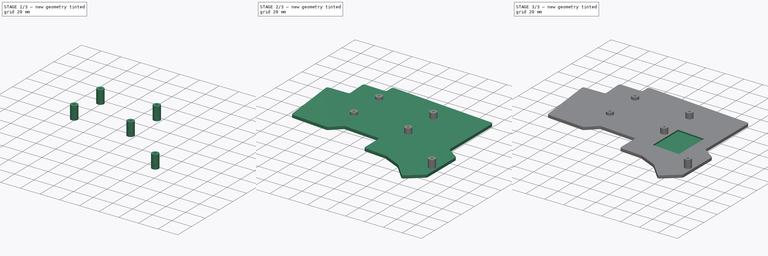
[diagram: build sequence overview — one tinted view per stage of 3, left to right]
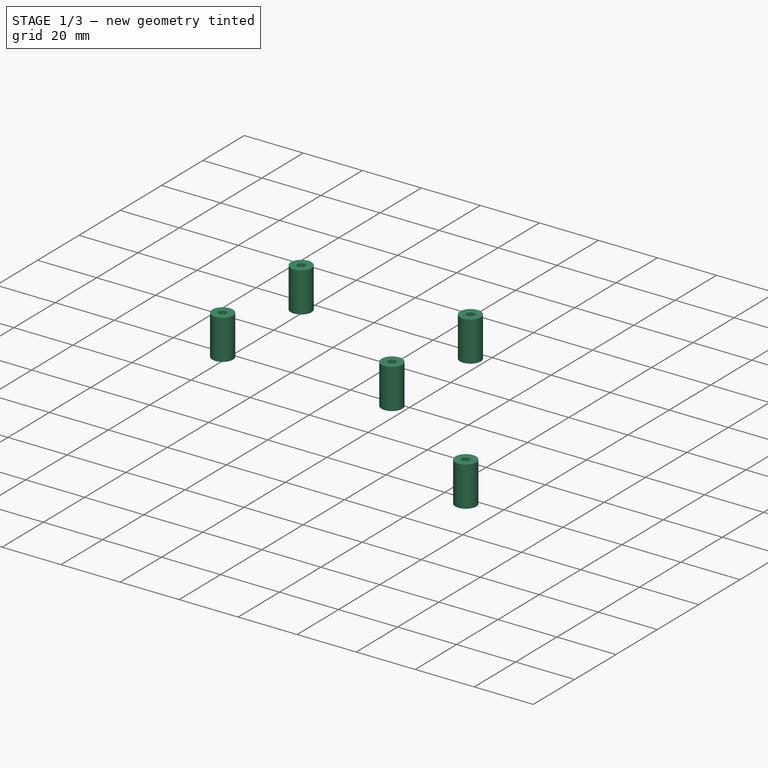
[diagram: stage 1 of 3 — iso view after this stage's code; geometry added in this stage tinted green]
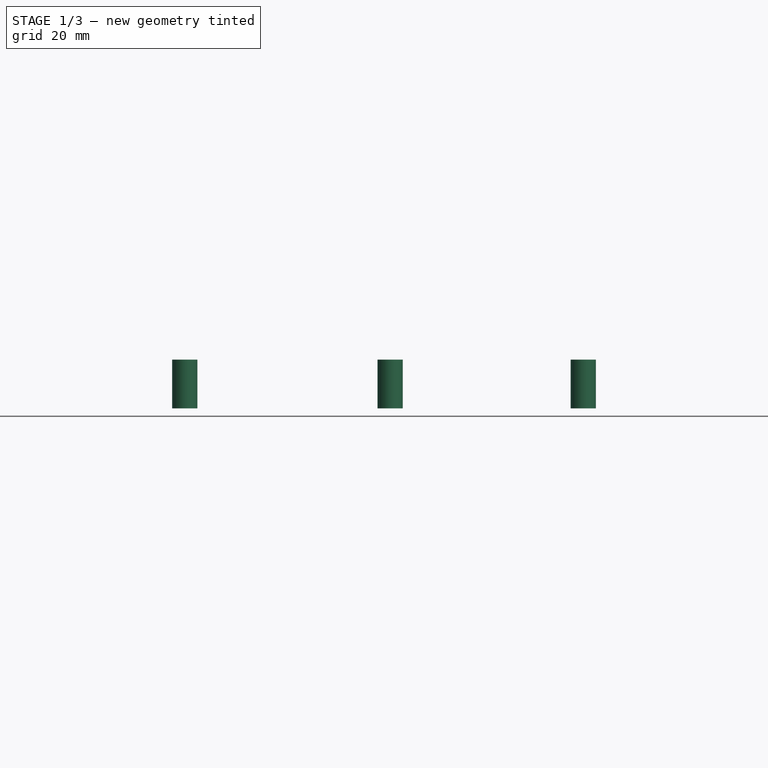
[diagram: stage 1 of 3 — front view after this stage's code; geometry added in this stage tinted green]
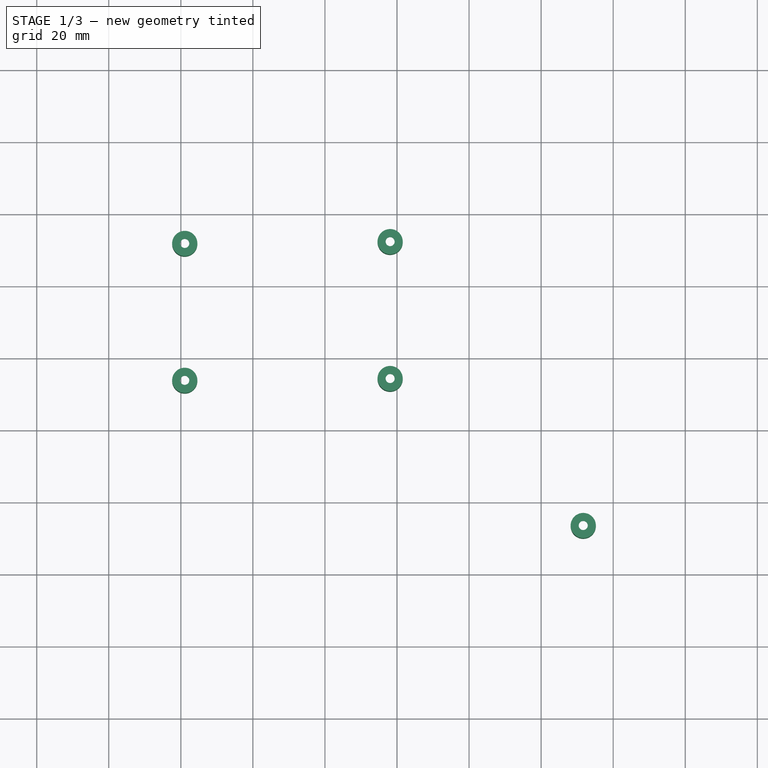
[diagram: stage 1 of 3 — top view after this stage's code; geometry added in this stage tinted green]
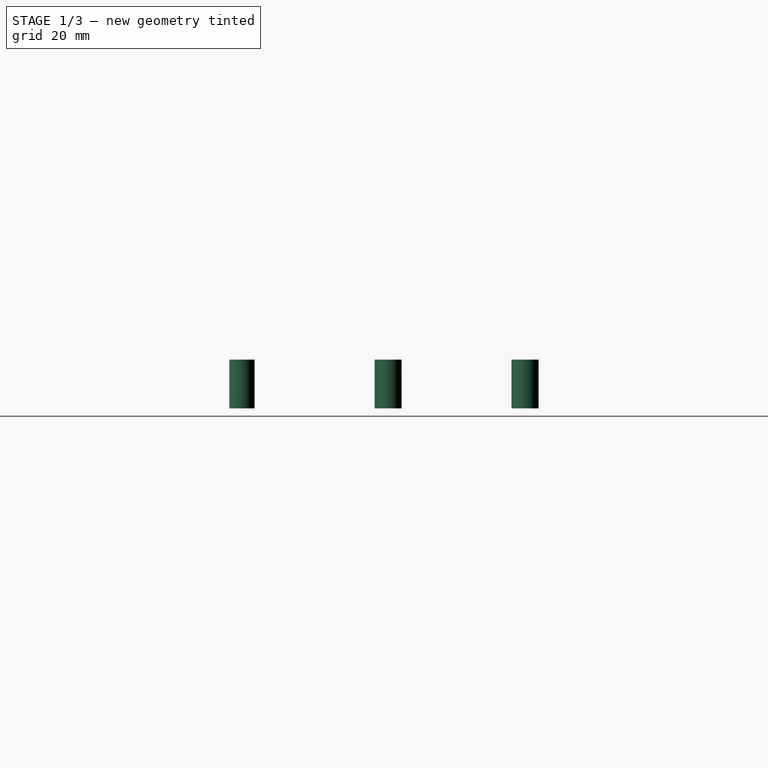
[diagram: stage 1 of 3 — right view after this stage's code; geometry added in this stage tinted green]
FCSTD DOCUMENT  (FreeCAD 1.0R39109 (Git))
Label: open_case
License: All rights reserved
LicenseURL: http://en.wikipedia.org/wiki/All_rights_reserved
objects: Sketcher::SketchObject×7, Part::Feature×3, PartDesign::Pad×3, PartDesign::Pocket×3, PartDesign::Plane×2, PartDesign::SubShapeBinder×1, Measure::MeasureDistanceDetached×1, App::DocumentObjectGroup×1, PartDesign::Body×1, Part::Refine×1
note: 40 computed .brp shape members not serialized (recipe doc carries the construction recipe); baked Part::Feature solids carry a one-line shape summary decoded from their .brp

FEATURE [Part::Feature] Part__Feature  label="pcb_left"
  Placement = pos=(75.5822,30.5858,0) rot=(0,0,1;0rad)
  shape: bbox 163.5 x 132.8 x 1.51 mm, 41 faces (baked)
FEATURE [Part::Feature] Part__Feature001  label="bottom_left"
  Placement = pos=(-38.5496,187.157,-3) rot=(0,-1,0;-0.05236rad)
  shape: bbox 163.4 x 132.8 x 10.55 mm, 548 faces (baked)
FEATURE [Part::Feature] Part__Feature005  label="switchplate_left"
  Placement = pos=(-38.5496,187.157,3.51) rot=(0,0,1;0rad)
  shape: bbox 163.5 x 132.8 x 3 mm, 612 faces, 0 solids (baked)
FEATURE [PartDesign::SubShapeBinder] Binder
  BindCopyOnChange = 0
  BindMode = 0
  ClaimChildren = false
  Context = -> Body [Binder.]
  Fuse = false
  MakeFace = true
  OffsetFill = false
  OffsetIntersection = false
  OffsetJoinType = 0
  OffsetOpenResult = false
  PartialLoad = false
  Relative = true
  Support = -> [Part__Feature,Part__Feature001]
  _Version = 2
FEATURE [PartDesign::Plane] DatumPlane
  AttachmentOffset = pos=(0,0,2.4) rot=(0,0,1;0rad)
  AttachmentSupport = -> [Binder]
  Length = 212.817
  MapMode = 5
  Placement = pos=(0,0,-2.4) rot=(1,0,0;3.14159rad)
  ResizeMode = 0
  Width = 163.85
FEATURE [Sketcher::SketchObject] Sketch
  ArcFitTolerance = 1e-06
  AttachmentSupport = -> [DatumPlane]
  ExternalGeometry = -> [Binder]
  FullyConstrained = true
  MakeInternals = false
  MapMode = 5
  Placement = pos=(0,0,-2.4) rot=(1,0,0;3.14159rad)
  sketch-geometry (10):
    g0: Circle CenterX=41.0861 CenterY=-33.7618 CenterZ=0 NormalX=0 NormalY=0 NormalZ=1 AngleXU=0 Radius=1.25
    g1: Circle CenterX=98.0861 CenterY=-34.2619 CenterZ=0 NormalX=0 NormalY=0 NormalZ=1 AngleXU=0 Radius=1.25
    g2: Circle CenterX=151.686 CenterY=6.53815 CenterZ=0 NormalX=0 NormalY=0 NormalZ=1 AngleXU=0 Radius=1.25
    g3: Circle CenterX=98.0861 CenterY=-72.2618 CenterZ=0 NormalX=0 NormalY=0 NormalZ=1 AngleXU=0 Radius=1.25
    g4: Circle CenterX=41.0861 CenterY=-71.7618 CenterZ=0 NormalX=0 NormalY=0 NormalZ=1 AngleXU=0 Radius=1.25
    g5: Circle CenterX=41.0861 CenterY=-33.7618 CenterZ=0 NormalX=0 NormalY=0 NormalZ=1 AngleXU=0 Radius=3.5
    g6: Circle CenterX=98.0861 CenterY=-34.2619 CenterZ=0 NormalX=0 NormalY=0 NormalZ=1 AngleXU=0 Radius=3.5
    g7: Circle CenterX=151.686 CenterY=6.53815 CenterZ=0 NormalX=0 NormalY=0 NormalZ=1 AngleXU=0 Radius=3.5
    g8: Circle CenterX=98.0861 CenterY=-72.2618 CenterZ=0 NormalX=0 NormalY=0 NormalZ=1 AngleXU=0 Radius=3.5
    g9: Circle CenterX=41.0861 CenterY=-71.7618 CenterZ=0 NormalX=0 NormalY=0 NormalZ=1 AngleXU=0 Radius=3.5
  constraints (20):
    c: Diameter(g0) = 2.5
    c: Coincident(g0,g-3)
    c: Diameter(g1) = 2.5
    c: Coincident(g1,g-4)
    c: Diameter(g2) = 2.5
    c: Coincident(g2,g-5)
    c: Diameter(g3) = 2.5
    c: Coincident(g3,g-6)
    c: Diameter(g4) = 2.5
    c: Coincident(g4,g-7)
    c: Coincident(g5,g0)
    c: Diameter(g5) = 7
    c: Coincident(g6,g1)
    c: Coincident(g7,g2)
    c: Coincident(g8,g3)
    c: Coincident(g9,g4)
    c: Diameter(g9) = 7
    c: Diameter(g6) = 7
    c: Diameter(g7) = 7
    c: Diameter(g8) = 7
FEATURE [PartDesign::Pad] Pad
  Direction = (0,0,-1)
  Length = 1.5
  Length2 = 10
  Placement = pos=(0,0,-2.4) rot=(1,0,0;3.14159rad)
  Profile = -> Sketch
  ReferenceAxis = -> Sketch [N_Axis]
  Suppressed = false
  Type = 0
FEATURE [Sketcher::SketchObject] Sketch001
  ArcFitTolerance = 1e-06
  AttachmentSupport = -> [Pad]
  ExternalGeometry = -> [Pad]
  FullyConstrained = true
  MakeInternals = false
  MapMode = 5
  Placement = pos=(0,0,-3.9) rot=(1,0,0;3.14159rad)
  sketch-geometry (10):
    g0: Circle CenterX=41.0861 CenterY=-33.7618 CenterZ=0 NormalX=0 NormalY=0 NormalZ=1 AngleXU=0 Radius=3.5
    g1: Circle CenterX=41.0861 CenterY=-33.7618 CenterZ=0 NormalX=0 NormalY=0 NormalZ=1 AngleXU=0 Radius=2.5
    g2: Circle CenterX=41.0861 CenterY=-71.7618 CenterZ=0 NormalX=0 NormalY=0 NormalZ=1 AngleXU=0 Radius=2.5
    g3: Circle CenterX=98.0861 CenterY=-72.2618 CenterZ=0 NormalX=0 NormalY=0 NormalZ=1 AngleXU=0 Radius=2.5
    g4: Circle CenterX=98.0861 CenterY=-34.2619 CenterZ=0 NormalX=0 NormalY=0 NormalZ=1 AngleXU=0 Radius=2.5
    g5: Circle CenterX=151.686 CenterY=6.53815 CenterZ=0 NormalX=0 NormalY=0 NormalZ=1 AngleXU=0 Radius=2.5
    g6: Circle CenterX=151.686 CenterY=6.53815 CenterZ=0 NormalX=0 NormalY=0 NormalZ=1 AngleXU=0 Radius=3.5
    g7: Circle CenterX=98.0861 CenterY=-34.2619 CenterZ=0 NormalX=0 NormalY=0 NormalZ=1 AngleXU=0 Radius=3.5
    g8: Circle CenterX=98.0861 CenterY=-72.2618 CenterZ=0 NormalX=0 NormalY=0 NormalZ=1 AngleXU=0 Radius=3.5
    g9: Circle CenterX=41.0861 CenterY=-71.7618 CenterZ=0 NormalX=0 NormalY=0 NormalZ=1 AngleXU=0 Radius=3.5
  constraints (20):
    c: Coincident(g0,g-3)
    c: Equal(g0,g-3)
    c: Diameter(g1) = 5
    c: Coincident(g1,g0)
    c: Diameter(g2) = 5
    c: Coincident(g2,g-4)
    c: Diameter(g3) = 5
    c: Coincident(g3,g-6)
    c: Diameter(g4) = 5
    c: Coincident(g4,g-5)
    c: Diameter(g5) = 5
    c: Coincident(g5,g-7)
    c: Coincident(g6,g5)
    c: Tangent(g6,g-7)
    c: Coincident(g7,g4)
    c: Tangent(g7,g-5)
    c: Coincident(g8,g3)
    c: Tangent(g8,g-6)
    c: Coincident(g9,g2)
    c: Tangent(g9,g-4)
FEATURE [PartDesign::Pad] Pad001
  BaseFeature = -> Pad
  Direction = (0,0,-1)
  Length = 12
  Length2 = 10
  Placement = pos=(0,0,-2.4) rot=(1,0,0;3.14159rad)
  Profile = -> Sketch001
  ReferenceAxis = -> Sketch001 [N_Axis]
  Suppressed = false
  Type = 0
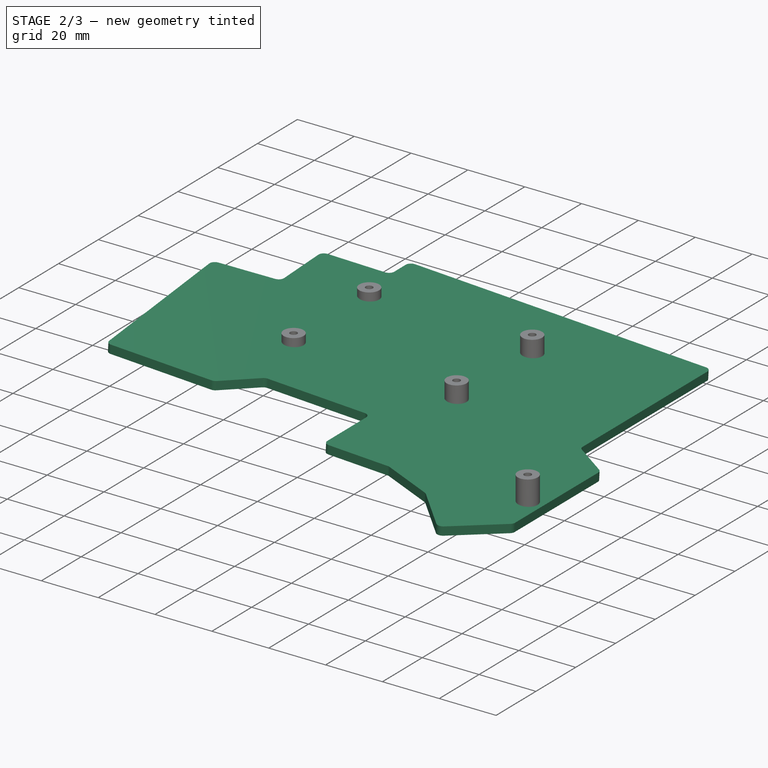
[diagram: stage 2 of 3 — iso view after this stage's code; geometry added in this stage tinted green]
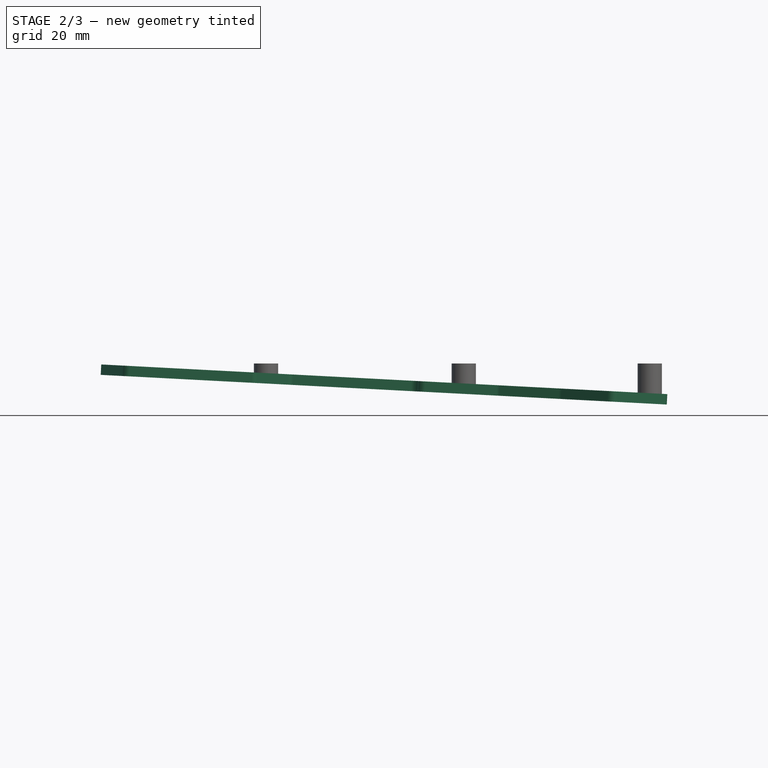
[diagram: stage 2 of 3 — front view after this stage's code; geometry added in this stage tinted green]
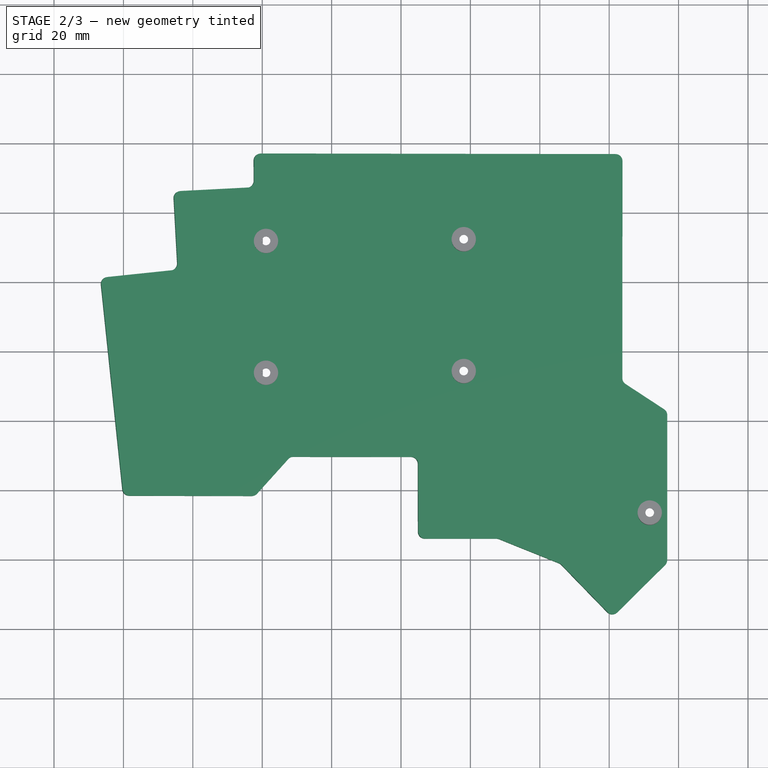
[diagram: stage 2 of 3 — top view after this stage's code; geometry added in this stage tinted green]
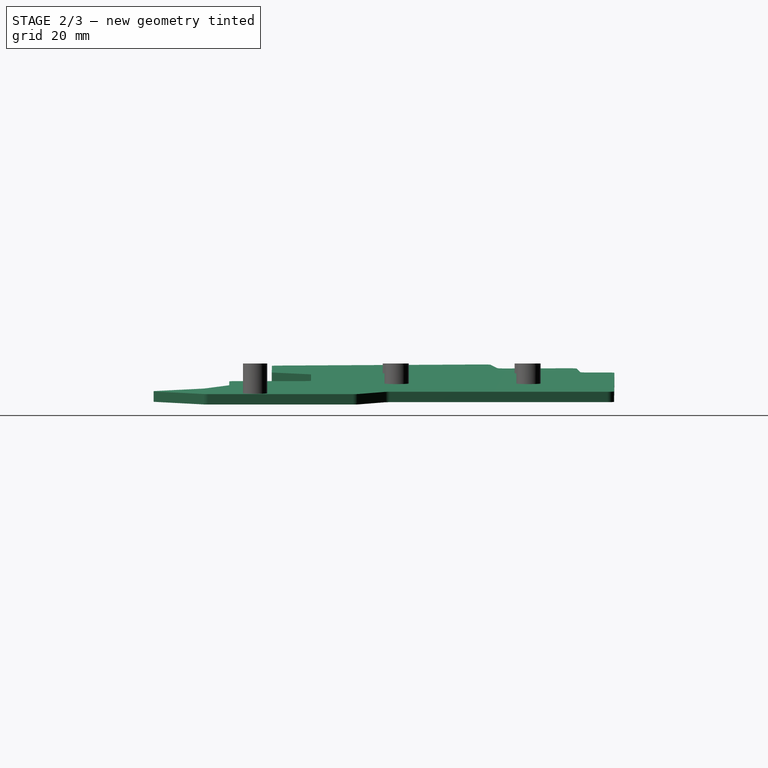
[diagram: stage 2 of 3 — right view after this stage's code; geometry added in this stage tinted green]
FEATURE [Sketcher::SketchObject] Sketch002
  ArcFitTolerance = 1e-06
  AttachmentSupport = -> [Binder]
  FullyConstrained = false
  MakeInternals = false
  MapMode = 5
  Placement = pos=(0,0,1.51) rot=(0,0,1;0rad)
  sketch-geometry (112):
    g0: ArcOfCircle [constr] CenterX=39.9952 CenterY=95.0104 CenterZ=0 NormalX=0 NormalY=0 NormalZ=1 AngleXU=0 Radius=1.99994 StartAngle=1.57002 EndAngle=3.14616
    g1: ArcOfCircle [constr] CenterX=36.0217 CenterY=89.1624 CenterZ=0 NormalX=0 NormalY=0 NormalZ=1 AngleXU=0 Radius=1.97389 StartAngle=4.7654 EndAngle=6.30103
    g2: ArcOfCircle [constr] CenterX=142.46 CenterY=95.0317 CenterZ=0 NormalX=0 NormalY=0 NormalZ=1 AngleXU=0 Radius=1.97867 StartAngle=6.23309 EndAngle=7.85321
    g3: ArcOfCircle [constr] CenterX=146.437 CenterY=32.3376 CenterZ=0 NormalX=0 NormalY=0 NormalZ=1 AngleXU=0 Radius=2.00014 StartAngle=3.14125 EndAngle=4.12866
    g4: ArcOfCircle [constr] CenterX=155.336 CenterY=21.6659 CenterZ=0 NormalX=0 NormalY=0 NormalZ=1 AngleXU=0 Radius=1.99998 StartAngle=6.28318 EndAngle=7.27029
    g5: ArcOfCircle [constr] CenterX=155.336 CenterY=-20.1097 CenterZ=0 NormalX=0 NormalY=0 NormalZ=1 AngleXU=0 Radius=1.99993 StartAngle=5.49777 EndAngle=6.2832
    g6: ArcOfCircle [constr] CenterX=141.607 CenterY=-33.8387 CenterZ=0 NormalX=0 NormalY=0 NormalZ=1 AngleXU=0 Radius=1.99998 StartAngle=3.9122 EndAngle=5.4978
    g7: ArcOfCircle [constr] CenterX=125.446 CenterY=-22.9349 CenterZ=0 NormalX=0 NormalY=0 NormalZ=1 AngleXU=0 Radius=1.99976 StartAngle=0.7706 EndAngle=1.18793
    g8: ArcOfCircle [constr] CenterX=108.198 CenterY=-15.9884 CenterZ=0 NormalX=0 NormalY=0 NormalZ=1 AngleXU=0 Radius=2.00022 StartAngle=1.18792 EndAngle=1.57077
    g9: ArcOfCircle [constr] CenterX=87.4407 CenterY=-11.9882 CenterZ=0 NormalX=0 NormalY=0 NormalZ=1 AngleXU=0 Radius=2.00036 StartAngle=3.14369 EndAngle=4.73297
    g10: ArcOfCircle [constr] CenterX=83.4404 CenterY=7.56182 CenterZ=0 NormalX=0 NormalY=0 NormalZ=1 AngleXU=0 Radius=2.00003 StartAngle=0.00214054 EndAngle=1.57078
    g11: ArcOfCircle [constr] CenterX=49.3747 CenterY=7.56196 CenterZ=0 NormalX=0 NormalY=0 NormalZ=1 AngleXU=0 Radius=1.99989 StartAngle=1.57077 EndAngle=2.40702
    g12: ArcOfCircle [constr] CenterX=37.3924 CenterY=0.263209 CenterZ=0 NormalX=0 NormalY=0 NormalZ=1 AngleXU=0 Radius=1.99995 StartAngle=4.71115 EndAngle=5.5486
    g13: ArcOfCircle [constr] CenterX=2.0375 CenterY=0.306806 CenterZ=0 NormalX=0 NormalY=0 NormalZ=1 AngleXU=0 Radius=2.04355 StartAngle=3.24407 EndAngle=4.71118
    g14: ArcOfCircle [constr] CenterX=-4.17172 CenterY=59.3829 CenterZ=0 NormalX=0 NormalY=0 NormalZ=1 AngleXU=0 Radius=1.99993 StartAngle=1.67548 EndAngle=3.24635
    g15: ArcOfCircle [constr] CenterX=13.877 CenterY=65.3018 CenterZ=0 NormalX=0 NormalY=0 NormalZ=1 AngleXU=0 Radius=2.00001 StartAngle=4.81711 EndAngle=6.33743
    g16: ArcOfCircle [constr] CenterX=16.8579 CenterY=84.1788 CenterZ=0 NormalX=0 NormalY=0 NormalZ=1 AngleXU=0 Radius=2.00001 StartAngle=1.62316 EndAngle=3.19584
    g17: LineSegment [constr] StartX=39.9967 StartY=97.0103 StartZ=0 EndX=142.462 EndY=97.0103 EndZ=0
    g18: LineSegment [constr] StartX=144.437 StartY=94.9326 StartZ=0 EndX=144.437 EndY=32.3383 EndZ=0
    g19: LineSegment [constr] StartX=145.334 StartY=30.6686 StartZ=0 EndX=156.438 EndY=23.3348 EndZ=0
    g20: LineSegment [constr] StartX=157.336 StartY=21.6659 StartZ=0 EndX=157.336 EndY=-20.1097 EndZ=0
    g21: LineSegment [constr] StartX=156.75 StartY=-21.5239 StartZ=0 EndX=143.021 EndY=-35.2529 EndZ=0
    g22: LineSegment [constr] StartX=140.172 StartY=-35.2318 StartZ=0 EndX=126.881 EndY=-21.542 EndZ=0
    g23: LineSegment [constr] StartX=108.946 StartY=-14.133 StartZ=0 EndX=126.193 EndY=-21.08 EndZ=0
    g24: LineSegment [constr] StartX=108.198 StartY=-13.9882 StartZ=0 EndX=87.4819 EndY=-13.9882 EndZ=0
    g25: LineSegment [constr] StartX=85.4404 StartY=-11.9924 StartZ=0 EndX=85.4404 EndY=7.5661 EndZ=0
    g26: LineSegment [constr] StartX=83.4404 StartY=9.56184 StartZ=0 EndX=49.3747 EndY=9.56184 EndZ=0
    g27: LineSegment [constr] StartX=47.8905 StartY=8.90242 StartZ=0 EndX=38.8766 EndY=-1.07731 EndZ=0
    g28: LineSegment [constr] StartX=37.3899 StartY=-1.73674 StartZ=0 EndX=2.03503 EndY=-1.73674 EndZ=0
    g29: LineSegment [constr] StartX=0.00466849 StartY=0.0977495 StartZ=0 EndX=-6.16069 EndY=59.1738 EndZ=0
    g30: LineSegment [constr] StartX=-4.3807 StartY=61.3719 StartZ=0 EndX=14.0861 EndY=63.3128 EndZ=0
    g31: LineSegment [constr] StartX=15.8741 StartY=65.4103 StartZ=0 EndX=14.8608 EndY=84.0703 EndZ=0
    g32: LineSegment [constr] StartX=16.7532 StartY=86.176 StartZ=0 EndX=36.1263 EndY=87.1913 EndZ=0
    g33: LineSegment [constr] StartX=37.9953 StartY=89.1977 StartZ=0 EndX=37.9953 EndY=95.0013 EndZ=0
    g34: LineSegment StartX=37.7953 StartY=89.1958 StartZ=0 EndX=37.7953 EndY=95.0008 EndZ=0
    g35: ArcOfCircle CenterX=39.9952 CenterY=95.0104 CenterZ=0 NormalX=0 NormalY=0 NormalZ=1 AngleXU=0 Radius=2.19994 StartAngle=1.57005 EndAngle=3.14595
    g36: LineSegment StartX=39.9968 StartY=97.2103 StartZ=0 EndX=142.462 EndY=97.2103 EndZ=0
    g37: ArcOfCircle CenterX=142.46 CenterY=95.0317 CenterZ=0 NormalX=0 NormalY=0 NormalZ=1 AngleXU=0 Radius=2.17867 StartAngle=6.23545 EndAngle=7.85325
    g38: LineSegment StartX=144.637 StartY=94.9277 StartZ=0 EndX=144.637 EndY=32.3376 EndZ=0
    g39: LineSegment StartX=145.445 StartY=30.8355 StartZ=0 EndX=156.549 EndY=23.5017 EndZ=0
    g40: ArcOfCircle CenterX=155.336 CenterY=21.6659 CenterZ=0 NormalX=0 NormalY=0 NormalZ=1 AngleXU=0 Radius=2.19998 StartAngle=4e-16 EndAngle=0.987099
    g41: LineSegment StartX=157.536 StartY=21.6659 StartZ=0 EndX=157.536 EndY=-20.1097 EndZ=0
    g42: ArcOfCircle CenterX=155.336 CenterY=-20.1097 CenterZ=0 NormalX=0 NormalY=0 NormalZ=1 AngleXU=0 Radius=2.19993 StartAngle=5.49779 EndAngle=6.28319
    g43: LineSegment StartX=156.892 StartY=-21.6653 StartZ=0 EndX=143.163 EndY=-35.3943 EndZ=0
    g44: ArcOfCircle CenterX=141.607 CenterY=-33.8387 CenterZ=0 NormalX=0 NormalY=0 NormalZ=1 AngleXU=0 Radius=2.19998 StartAngle=3.91221 EndAngle=5.49779
    g45: LineSegment StartX=140.029 StartY=-35.3712 StartZ=0 EndX=126.738 EndY=-21.6812 EndZ=0
    g46: ArcOfCircle CenterX=125.446 CenterY=-22.9349 CenterZ=0 NormalX=0 NormalY=0 NormalZ=1 AngleXU=0 Radius=1.79976 StartAngle=0.770621 EndAngle=1.1879
    g47: LineSegment StartX=108.871 StartY=-14.3185 StartZ=0 EndX=126.119 EndY=-21.2655 EndZ=0
    g48: ArcOfCircle CenterX=108.198 CenterY=-15.9884 CenterZ=0 NormalX=0 NormalY=0 NormalZ=1 AngleXU=0 Radius=1.80022 StartAngle=1.1879 EndAngle=1.5708
    g49: LineSegment StartX=108.198 StartY=-14.1882 StartZ=0 EndX=87.4839 EndY=-14.1882 EndZ=0
    g50: ArcOfCircle CenterX=87.4407 CenterY=-11.9882 CenterZ=0 NormalX=0 NormalY=0 NormalZ=1 AngleXU=0 Radius=2.20036 StartAngle=3.14359 EndAngle=4.73201
    g51: LineSegment StartX=85.2404 StartY=-11.9926 StartZ=0 EndX=85.2404 EndY=7.56588 EndZ=0
    g52: ArcOfCircle CenterX=83.4404 CenterY=7.56182 CenterZ=0 NormalX=0 NormalY=0 NormalZ=1 AngleXU=0 Radius=1.80003 StartAngle=0.00225633 EndAngle=1.5708
    g53: LineSegment StartX=83.4404 StartY=9.36184 StartZ=0 EndX=49.3747 EndY=9.36184 EndZ=0
    g54: ArcOfCircle CenterX=49.3747 CenterY=7.56196 CenterZ=0 NormalX=0 NormalY=0 NormalZ=1 AngleXU=0 Radius=1.79989 StartAngle=1.5708 EndAngle=2.407
    g55: LineSegment StartX=48.039 StartY=8.7684 StartZ=0 EndX=39.025 EndY=-1.21139 EndZ=0
    g56: ArcOfCircle CenterX=37.3924 CenterY=0.263209 CenterZ=0 NormalX=0 NormalY=0 NormalZ=1 AngleXU=0 Radius=2.19995 StartAngle=4.7112 EndAngle=5.54859
    g57: LineSegment StartX=37.3898 StartY=-1.93674 StartZ=0 EndX=2.03491 EndY=-1.93674 EndZ=0
    g58: ArcOfCircle CenterX=2.0375 CenterY=0.306806 CenterZ=0 NormalX=0 NormalY=0 NormalZ=1 AngleXU=0 Radius=2.24355 StartAngle=3.24414 EndAngle=4.71124
    g59: LineSegment StartX=-0.194266 StartY=0.0771359 StartZ=0 EndX=-6.3596 EndY=59.1529 EndZ=0
    g60: ArcOfCircle CenterX=-4.17172 CenterY=59.3829 CenterZ=0 NormalX=0 NormalY=0 NormalZ=1 AngleXU=0 Radius=2.19993 StartAngle=1.67552 EndAngle=3.24631
    g61: LineSegment StartX=-4.40167 StartY=61.5708 StartZ=0 EndX=14.0652 EndY=63.5117 EndZ=0
    g62: ArcOfCircle CenterX=13.877 CenterY=65.3018 CenterZ=0 NormalX=0 NormalY=0 NormalZ=1 AngleXU=0 Radius=1.80001 StartAngle=4.81711 EndAngle=6.33743
    g63: LineSegment StartX=15.6744 StartY=65.3994 StartZ=0 EndX=14.6611 EndY=84.0595 EndZ=0
    g64: ArcOfCircle CenterX=16.8579 CenterY=84.1788 CenterZ=0 NormalX=0 NormalY=0 NormalZ=1 AngleXU=0 Radius=2.20001 StartAngle=1.62316 EndAngle=3.19584
    g65: LineSegment StartX=16.7428 StartY=86.3757 StartZ=0 EndX=36.1158 EndY=87.391 EndZ=0
    g66: ArcOfCircle CenterX=36.0217 CenterY=89.1624 CenterZ=0 NormalX=0 NormalY=0 NormalZ=1 AngleXU=0 Radius=1.77389 StartAngle=4.76544 EndAngle=6.30201
    g67: LineSegment [constr] StartX=148.237 StartY=32.3376 StartZ=0 EndX=148.437 EndY=32.3376 EndZ=0
    g68: LineSegment [constr] StartX=89.6411 StartY=-11.9882 StartZ=0 EndX=89.4411 EndY=-11.9882 EndZ=0
    g69: LineSegment [constr] StartX=85.2404 StartY=-11.9926 StartZ=0 EndX=85.4404 EndY=-11.9926 EndZ=0
    g70: LineSegment [constr] StartX=85.2404 StartY=7.56182 StartZ=0 EndX=85.4404 EndY=7.56182 EndZ=0
    g71: LineSegment [constr] StartX=37.3898 StartY=-1.93674 StartZ=0 EndX=37.3898 EndY=-1.73674 EndZ=0
    g72: LineSegment [constr] StartX=4.28105 StartY=0.306806 StartZ=0 EndX=4.08105 EndY=0.306806 EndZ=0
    g73: LineSegment [constr] StartX=-0.194266 StartY=0.0771359 StartZ=0 EndX=0.00465322 EndY=0.0978958 EndZ=0
    g74: LineSegment [constr] StartX=-1.97178 StartY=59.3829 StartZ=0 EndX=-2.17178 EndY=59.3829 EndZ=0
    g75: LineSegment [constr] StartX=37.7956 StartY=89.1624 StartZ=0 EndX=37.9956 EndY=89.1624 EndZ=0
    g76: LineSegment [constr] StartX=37.7953 StartY=89.1958 StartZ=0 EndX=37.9953 EndY=89.1958 EndZ=0
    g77: LineSegment [constr] StartX=42.1951 StartY=95.0104 StartZ=0 EndX=41.9951 EndY=95.0104 EndZ=0
    g78: LineSegment [constr] StartX=39.9968 StartY=97.2103 StartZ=0 EndX=39.9968 EndY=97.0103 EndZ=0
    g79: LineSegment [constr] StartX=144.639 StartY=95.0317 StartZ=0 EndX=144.439 EndY=95.0317 EndZ=0
    g80: LineSegment [constr] StartX=144.637 StartY=94.9277 StartZ=0 EndX=144.437 EndY=94.9277 EndZ=0
    g81: ArcOfCircle CenterX=146.437 CenterY=32.3376 CenterZ=0 NormalX=0 NormalY=0 NormalZ=1 AngleXU=0 Radius=1.80014 StartAngle=3.14159 EndAngle=4.12869
    g82: LineSegment StartX=35.7953 StartY=89.377 StartZ=0 EndX=35.7953 EndY=94.9972 EndZ=0
    g83: ArcOfCircle CenterX=39.9952 CenterY=95.0104 CenterZ=0 NormalX=0 NormalY=0 NormalZ=1 AngleXU=0 Radius=4.19994 StartAngle=1.57026 EndAngle=3.14474
    g84: LineSegment StartX=39.9974 StartY=99.2103 StartZ=0 EndX=142.462 EndY=99.2103 EndZ=0
    g85: ArcOfCircle CenterX=142.462 CenterY=97.0103 CenterZ=0 NormalX=0 NormalY=0 NormalZ=1 AngleXU=-0.000768583 Radius=2.2 StartAngle=1.5708 EndAngle=1.57156
    g86: ArcOfCircle CenterX=142.46 CenterY=95.0317 CenterZ=0 NormalX=0 NormalY=0 NormalZ=1 AngleXU=0 Radius=4.17867 StartAngle=6.24872 EndAngle=7.85321
    g87: LineSegment StartX=146.637 StartY=94.8877 StartZ=0 EndX=146.637 EndY=32.4451 EndZ=0
    g88: LineSegment StartX=146.637 StartY=32.4451 StartZ=0 EndX=157.651 EndY=25.1705 EndZ=0
    g89: ArcOfCircle CenterX=155.336 CenterY=21.6659 CenterZ=0 NormalX=0 NormalY=0 NormalZ=1 AngleXU=0 Radius=4.19998 StartAngle=3.399e-13 EndAngle=0.987099
    g90: LineSegment StartX=159.536 StartY=21.6659 StartZ=0 EndX=159.536 EndY=-20.1097 EndZ=0
    g91: ArcOfCircle CenterX=155.336 CenterY=-20.1097 CenterZ=0 NormalX=0 NormalY=0 NormalZ=1 AngleXU=0 Radius=4.19993 StartAngle=5.49779 EndAngle=6.28319
    g92: LineSegment StartX=158.306 StartY=-23.0795 StartZ=0 EndX=144.577 EndY=-36.8085 EndZ=0
    g93: ArcOfCircle CenterX=141.607 CenterY=-33.8387 CenterZ=0 NormalX=0 NormalY=0 NormalZ=1 AngleXU=0 Radius=4.19998 StartAngle=3.91221 EndAngle=5.49779
    g94: LineSegment StartX=138.594 StartY=-36.7643 StartZ=0 EndX=125.332 EndY=-23.1048 EndZ=0
    g95: LineSegment StartX=108.16 StartY=-16.1882 StartZ=0 EndX=125.332 EndY=-23.1048 EndZ=0
    g96: LineSegment StartX=108.16 StartY=-16.1882 StartZ=0 EndX=87.5004 EndY=-16.1882 EndZ=0
    g97: ArcOfCircle CenterX=87.4407 CenterY=-11.9882 CenterZ=0 NormalX=0 NormalY=0 NormalZ=1 AngleXU=0 Radius=4.20036 StartAngle=3.14369 EndAngle=4.72659
    g98: ArcOfCircle CenterX=85.4404 CenterY=-11.9924 CenterZ=0 NormalX=0 NormalY=0 NormalZ=1 AngleXU=1.5708 Radius=2.2 StartAngle=1.5708 EndAngle=1.57289
    g99: LineSegment StartX=83.2404 StartY=-11.9924 StartZ=0 EndX=83.2404 EndY=7.36184 EndZ=0
    g100: LineSegment StartX=83.2404 StartY=7.36184 StartZ=0 EndX=49.4636 EndY=7.36184 EndZ=0
    g101: LineSegment StartX=49.4636 StartY=7.36184 StartZ=0 EndX=40.5092 EndY=-2.55196 EndZ=0
    g102: ArcOfCircle CenterX=37.3924 CenterY=0.263209 CenterZ=0 NormalX=0 NormalY=0 NormalZ=1 AngleXU=0 Radius=4.19995 StartAngle=4.71153 EndAngle=5.54859
    g103: LineSegment StartX=37.3888 StartY=-3.93674 StartZ=0 EndX=2.03503 EndY=-3.93674 EndZ=0
    g104: ArcOfCircle CenterX=2.03503 CenterY=-1.73674 CenterZ=0 NormalX=0 NormalY=0 NormalZ=1 AngleXU=3.14039 Radius=2.2 StartAngle=1.5708 EndAngle=1.572
    g105: ArcOfCircle CenterX=2.0375 CenterY=0.306806 CenterZ=0 NormalX=0 NormalY=0 NormalZ=1 AngleXU=0 Radius=4.24355 StartAngle=3.24453 EndAngle=4.71118
    g106: LineSegment StartX=-2.18359 StartY=-0.129259 StartZ=0 EndX=-8.34873 EndY=58.9447 EndZ=0
    g107: ArcOfCircle CenterX=-4.17172 CenterY=59.3829 CenterZ=0 NormalX=0 NormalY=0 NormalZ=1 AngleXU=0 Radius=4.19993 StartAngle=1.67552 EndAngle=3.24611
    g108: LineSegment StartX=-4.61073 StartY=63.5598 StartZ=0 EndX=13.667 EndY=65.4809 EndZ=0
    g109: LineSegment StartX=13.667 StartY=65.4809 StartZ=0 EndX=12.6641 EndY=83.951 EndZ=0
    g110: LineSegment StartX=16.6381 StartY=88.373 StartZ=0 EndX=35.7953 EndY=89.377 EndZ=0
    g111: ArcOfCircle CenterX=16.8579 CenterY=84.1788 CenterZ=0 NormalX=0 NormalY=0 NormalZ=1 AngleXU=0 Radius=4.20001 StartAngle=1.62316 EndAngle=3.19584
  constraints (195):
    c: Coincident(g17,g0)
    c: Coincident(g17,g2)
    c: Horizontal(g17)
    c: Coincident(g18,g2)
    c: Coincident(g18,g3)
    c: Vertical(g18)
    c: Coincident(g19,g3)
    c: Coincident(g19,g4)
    c: Coincident(g20,g4)
    c: Coincident(g20,g5)
    c: Vertical(g20)
    c: Coincident(g21,g5)
    c: Coincident(g21,g6)
    c: Coincident(g22,g6)
    c: Coincident(g22,g7)
    c: Coincident(g23,g8)
    c: Coincident(g23,g7)
    c: Coincident(g24,g8)
    c: Coincident(g24,g9)
    c: Horizontal(g24)
    c: Coincident(g25,g9)
    c: Coincident(g25,g10)
    c: Vertical(g25)
    c: Coincident(g26,g10)
    c: Coincident(g26,g11)
    c: Horizontal(g26)
    c: Coincident(g27,g11)
    c: Coincident(g27,g12)
    c: Coincident(g28,g12)
    c: Coincident(g28,g13)
    c: Horizontal(g28)
    c: Coincident(g29,g13)
    c: Coincident(g29,g14)
    c: Coincident(g30,g14)
    c: Coincident(g30,g15)
    c: Coincident(g31,g15)
    c: Coincident(g31,g16)
    c: Coincident(g32,g16)
    c: Coincident(g32,g1)
    c: Coincident(g33,g1)
    c: Coincident(g33,g0)
    c: Vertical(g33)
    c: Coincident(g34,g35)
    c: Coincident(g34,g66)
    c: Coincident(g35,g36)
    c: Coincident(g36,g37)
    c: Coincident(g37,g38)
    c: Tangent(g39,g40) = 1.5708
    c: Tangent(g40,g41) = 1.5708
    c: Tangent(g41,g42) = 1.5708
    c: Tangent(g42,g43) = 1.5708
    c: Tangent(g43,g44) = 1.5708
    c: Tangent(g44,g45) = 1.5708
    c: Tangent(g45,g46) = -1.5708
    c: Tangent(g46,g47) = 1.5708
    c: Tangent(g47,g48) = 1.5708
    c: Tangent(g48,g49) = -1.5708
    c: Coincident(g49,g50)
    c: Coincident(g50,g51)
    c: Coincident(g51,g52)
    c: Tangent(g52,g53) = -1.5708
    c: Tangent(g53,g54) = -1.5708
    c: Tangent(g54,g55) = -1.5708
    c: Tangent(g55,g56) = 1.5708
    c: Coincident(g56,g57)
    c: Coincident(g57,g58)
    c: Coincident(g58,g59)
    c: Coincident(g59,g60)
    c: Tangent(g60,g61) = 1.5708
    c: Tangent(g61,g62) = -1.5708
    c: Tangent(g62,g63) = -1.5708
    c: Tangent(g63,g64) = 1.5708
    c: Tangent(g64,g65) = 1.5708
    c: Coincident(g65,g66)
    c: PointOnObject(g67,g3)
    c: Perpendicular(g68,g50)
    c: PointOnObject(g68,g50)
    c: PointOnObject(g68,g9)
    c: Perpendicular(g69,g51)
    c: PointOnObject(g69,g51)
    c: PointOnObject(g69,g25)
    c: Perpendicular(g70,g52)
    c: PointOnObject(g70,g52)
    c: PointOnObject(g70,g10)
    c: Perpendicular(g71,g57)
    c: PointOnObject(g71,g57)
    c: PointOnObject(g71,g28)
    c: Perpendicular(g72,g58)
    c: PointOnObject(g72,g58)
    c: PointOnObject(g72,g13)
    c: Perpendicular(g73,g59)
    c: PointOnObject(g73,g59)
    c: PointOnObject(g73,g29)
    c: Perpendicular(g74,g60)
    c: PointOnObject(g74,g60)
    c: PointOnObject(g74,g14)
    c: Perpendicular(g75,g66)
    c: PointOnObject(g75,g66)
    c: PointOnObject(g75,g1)
    c: Perpendicular(g76,g34)
    c: PointOnObject(g76,g34)
    c: PointOnObject(g76,g33)
    c: Perpendicular(g77,g35)
    c: PointOnObject(g77,g35)
    c: PointOnObject(g77,g0)
    c: Perpendicular(g78,g36)
    c: PointOnObject(g78,g36)
    c: PointOnObject(g78,g17)
    c: Perpendicular(g79,g37)
    c: PointOnObject(g79,g37)
    c: PointOnObject(g79,g2)
    c: Perpendicular(g80,g38)
    c: PointOnObject(g80,g38)
    c: PointOnObject(g80,g18)
    c: Parallel(g39,g19)
    c: Coincident(g40,g4)
    c: Parallel(g41,g20)
    c: Coincident(g42,g5)
    c: Parallel(g43,g21)
    c: Coincident(g44,g6)
    c: Parallel(g45,g22)
    c: Coincident(g46,g7)
    c: Parallel(g47,g23)
    c: Coincident(g48,g8)
    c: Parallel(g49,g24)
    c: Coincident(g50,g9)
    c: Equal(g68,g67)
    c: Parallel(g51,g25)
    c: Equal(g69,g67)
    c: Coincident(g52,g10)
    c: Equal(g70,g67)
    c: Parallel(g53,g26)
    c: Coincident(g54,g11)
    c: Parallel(g55,g27)
    c: Coincident(g56,g12)
    c: Parallel(g57,g28)
    c: Equal(g71,g67)
    c: Coincident(g58,g13)
    c: Equal(g72,g67)
    c: Parallel(g59,g29)
    c: Equal(g73,g67)
    c: Coincident(g60,g14)
    c: Equal(g74,g67)
    c: Parallel(g61,g30)
    c: Coincident(g62,g15)
    c: Parallel(g63,g31)
    c: Coincident(g64,g16)
    c: Parallel(g65,g32)
    c: Coincident(g66,g1)
    c: Equal(g75,g67)
    c: Parallel(g34,g33)
    c: Equal(g76,g67)
    c: Coincident(g35,g0)
    c: Equal(g77,g67)
    c: Parallel(g36,g17)
    c: Equal(g78,g67)
    c: Coincident(g37,g2)
    c: Equal(g79,g67)
    c: Parallel(g38,g18)
    c: Equal(g80,g67)
    c: Distance(g67) = 0.2
    c: Coincident(g81,g3)
    c: Coincident(g81,g38)
    c: Coincident(g81,g39)
    c: Coincident(g82,g83)
    c: Coincident(g82,g110)
    c: Coincident(g83,g84)
    c: Tangent(g84,g85) = 1.5708
    c: Tangent(g85,g86) = -1.5708
    c: Coincident(g86,g87)
    c: Coincident(g87,g88)
    c: Tangent(g88,g89) = 1.5708
    c: Tangent(g89,g90) = 1.5708
    c: Tangent(g90,g91) = 1.5708
    c: Tangent(g91,g92) = 1.5708
    c: Tangent(g92,g93) = 1.5708
    c: Tangent(g93,g94) = 1.5708
    c: Coincident(g94,g95)
    c: Coincident(g95,g96)
    c: Coincident(g96,g97)
    c: Tangent(g97,g98) = -1.5708
    c: Tangent(g98,g99) = 1.5708
    c: Coincident(g99,g100)
    c: Coincident(g100,g101)
    c: Tangent(g101,g102) = 1.5708
    c: Coincident(g102,g103)
    c: Tangent(g103,g104) = 1.5708
    c: Tangent(g104,g105) = -1.5708
    c: Coincident(g105,g106)
    c: Coincident(g106,g107)
    c: Tangent(g107,g108) = 1.5708
    c: Coincident(g108,g109)
    c: Coincident(g111,g16)
    c: Coincident(g111,g110)
    c: Coincident(g111,g109)
FEATURE [PartDesign::Plane] DatumPlane001
  AttachmentSupport = -> [Binder]
  Length = 215.386
  MapMode = 5
  Placement = pos=(-0.262382,0,-5.00655) rot=(0.999657,0,-0.026177;3.14159rad)
  ResizeMode = 0
  Width = 164.052
FEATURE [Sketcher::SketchObject] Sketch003
  ArcFitTolerance = 1e-06
  AttachmentSupport = -> [DatumPlane001]
  FullyConstrained = false
  MakeInternals = false
  MapMode = 5
  Placement = pos=(-0.262382,0,-5.00655) rot=(0.999657,0,-0.026177;3.14159rad)
  sketch-geometry (4):
    g0: LineSegment StartX=-41.1662 StartY=49.5325 StartZ=0 EndX=-41.1662 EndY=-115.446 EndZ=0
    g1: LineSegment StartX=-41.1662 StartY=-115.446 StartZ=0 EndX=214.086 EndY=-115.446 EndZ=0
    g2: LineSegment StartX=214.086 StartY=-115.446 StartZ=0 EndX=214.086 EndY=49.5325 EndZ=0
    g3: LineSegment StartX=214.086 StartY=49.5325 StartZ=0 EndX=-41.1662 EndY=49.5325 EndZ=0
  constraints (8):
    c: Coincident(g0,g1)
    c: Coincident(g1,g2)
    c: Coincident(g2,g3)
    c: Coincident(g3,g0)
    c: Vertical(g0)
    c: Vertical(g2)
    c: Horizontal(g1)
    c: Horizontal(g3)
FEATURE [PartDesign::Pocket] Pocket
  BaseFeature = -> Pad001
  Direction = (0.052336,0,0.99863)
  Length = 12
  Length2 = 5
  Placement = pos=(0,0,-2.4) rot=(1,0,0;3.14159rad)
  Profile = -> Sketch003
  ReferenceAxis = -> Sketch003 [N_Axis]
  Reversed = true
  Suppressed = false
  Type = 0
FEATURE [Sketcher::SketchObject] Sketch004
  ArcFitTolerance = 1e-06
  AttachmentSupport = -> [DatumPlane001]
  ExternalGeometry = -> [Binder]
  FullyConstrained = false
  MakeInternals = false
  MapMode = 5
  Placement = pos=(-0.262382,0,-5.00655) rot=(0.999657,0,-0.026177;3.14159rad)
  sketch-geometry (39):
    g0: Circle CenterX=152.157 CenterY=6.53815 CenterZ=0 NormalX=0 NormalY=0 NormalZ=1 AngleXU=0 Radius=2.50096
    g1: Circle CenterX=98.4835 CenterY=-34.2619 CenterZ=0 NormalX=0 NormalY=0 NormalZ=1 AngleXU=0 Radius=2.5
    g2: Circle CenterX=41.4053 CenterY=-33.7618 CenterZ=0 NormalX=0 NormalY=0 NormalZ=1 AngleXU=0 Radius=2.5
    g3: Circle CenterX=41.4053 CenterY=-71.7618 CenterZ=0 NormalX=0 NormalY=0 NormalZ=1 AngleXU=0 Radius=2.50188
    g4: Circle CenterX=98.4835 CenterY=-72.2618 CenterZ=0 NormalX=0 NormalY=0 NormalZ=1 AngleXU=0 Radius=2.50195
    g5: LineSegment StartX=139.98 StartY=35.2318 StartZ=0 EndX=126.688 EndY=21.5593 EndZ=0
    g6: LineSegment StartX=126.02 StartY=21.08 StartZ=0 EndX=108.785 EndY=14.1594 EndZ=0
    g7: LineSegment StartX=108.05 StartY=13.9882 StartZ=0 EndX=87.362 EndY=13.9882 EndZ=0
    g8: LineSegment StartX=85.2814 StartY=11.9926 StartZ=0 EndX=85.2486 EndY=-7.56594 EndZ=0
    g9: LineSegment StartX=83.326 StartY=-9.56185 StartZ=0 EndX=49.3071 EndY=-9.56184 EndZ=0
    g10: LineSegment StartX=47.7808 StartY=-8.94453 StartZ=0 EndX=38.7806 EndY=1.04062 EndZ=0
    g11: LineSegment StartX=37.3387 StartY=1.73674 StartZ=0 EndX=2.03224 EndY=1.6932 EndZ=0
    g12: LineSegment StartX=-0.034799 StartY=-0.0973131 StartZ=0 EndX=-6.23127 EndY=-59.1738 EndZ=0
    g13: LineSegment StartX=-4.45344 StartY=-61.3692 StartZ=0 EndX=13.9877 EndY=-63.3128 EndZ=0
    g14: LineSegment StartX=15.776 StartY=-65.4104 StartZ=0 EndX=14.7614 EndY=-84.0703 EndZ=0
    g15: LineSegment StartX=16.6514 StartY=-86.1733 StartZ=0 EndX=35.9978 EndY=-87.1913 EndZ=0
    g16: LineSegment StartX=37.8932 StartY=-89.1977 StartZ=0 EndX=37.8642 EndY=-95.0013 EndZ=0
    g17: LineSegment StartX=39.8629 StartY=-97.0076 StartZ=0 EndX=142.188 EndY=-96.9306 EndZ=0
    g18: LineSegment StartX=144.183 StartY=-94.9326 StartZ=0 EndX=144.158 EndY=-32.3383 EndZ=0
    g19: LineSegment StartX=145.056 StartY=-30.6686 StartZ=0 EndX=156.187 EndY=-23.3992 EndZ=0
    g20: LineSegment StartX=157.099 StartY=20.1097 StartZ=0 EndX=157.121 EndY=-21.6659 EndZ=0
    g21: LineSegment StartX=156.536 StartY=21.5239 StartZ=0 EndX=142.744 EndY=35.1755 EndZ=0
    g22: ArcOfCircle CenterX=87.2829 CenterY=11.9882 CenterZ=0 NormalX=0 NormalY=0 NormalZ=1 AngleXU=0 Radius=2.00151 StartAngle=1.53128 EndAngle=3.13941
    g23: ArcOfCircle CenterX=107.971 CenterY=15.9884 CenterZ=0 NormalX=0 NormalY=0 NormalZ=1 AngleXU=0 Radius=2.00178 StartAngle=4.7519 EndAngle=5.13091
    g24: ArcOfCircle CenterX=125.195 CenterY=22.9349 CenterZ=0 NormalX=0 NormalY=0 NormalZ=1 AngleXU=0 Radius=2.03019 StartAngle=5.13091 EndAngle=5.5387
    g25: ArcOfCircle CenterX=141.334 CenterY=33.8387 CenterZ=0 NormalX=0 NormalY=0 NormalZ=1 AngleXU=0 Radius=1.94268 StartAngle=0.758862 EndAngle=2.34194
    g26: ArcOfCircle CenterX=155.044 CenterY=20.1097 CenterZ=0 NormalX=0 NormalY=0 NormalZ=1 AngleXU=0 Radius=2.05516 StartAngle=6.28318 EndAngle=7.04208
    g27: ArcOfCircle CenterX=155.044 CenterY=-21.666 CenterZ=0 NormalX=0 NormalY=0 NormalZ=1 AngleXU=0 Radius=2.07626 StartAngle=5.29545 EndAngle=6.28319
    g28: ArcOfCircle CenterX=146.157 CenterY=-32.3376 CenterZ=0 NormalX=0 NormalY=0 NormalZ=1 AngleXU=0 Radius=1.9993 StartAngle=2.1539 EndAngle=3.14193
    g29: ArcOfCircle CenterX=142.186 CenterY=-94.9333 CenterZ=0 NormalX=0 NormalY=0 NormalZ=1 AngleXU=0 Radius=1.99727 StartAngle=4.71315 EndAngle=6.28356
    g30: ArcOfCircle CenterX=39.8613 CenterY=-95.0104 CenterZ=0 NormalX=0 NormalY=0 NormalZ=1 AngleXU=0 Radius=1.9972 StartAngle=3.13702 EndAngle=4.71316
    g31: ArcOfCircle CenterX=35.8933 CenterY=-89.1885 CenterZ=0 NormalX=0 NormalY=0 NormalZ=1 AngleXU=0 Radius=1.99992 StartAngle=6.2786 EndAngle=7.80173
    g32: ArcOfCircle CenterX=16.7558 CenterY=-84.1788 CenterZ=0 NormalX=0 NormalY=0 NormalZ=1 AngleXU=0 Radius=1.99728 StartAngle=3.08727 EndAngle=4.66009
    g33: ArcOfCircle CenterX=13.779 CenterY=-65.3018 CenterZ=0 NormalX=0 NormalY=0 NormalZ=1 AngleXU=0 Radius=1.99998 StartAngle=6.22887 EndAngle=7.7494
    g34: ArcOfCircle CenterX=-4.24503 CenterY=-59.3829 CenterZ=0 NormalX=0 NormalY=0 NormalZ=1 AngleXU=0 Radius=1.99722 StartAngle=3.03669 EndAngle=4.60785
    g35: ArcOfCircle CenterX=1.95568 CenterY=-0.306806 CenterZ=0 NormalX=0 NormalY=0 NormalZ=1 AngleXU=0 Radius=2.00147 StartAngle=1.53253 EndAngle=3.03673
    g36: ArcOfCircle CenterX=37.2621 CenterY=-0.263209 CenterZ=0 NormalX=0 NormalY=0 NormalZ=1 AngleXU=0 Radius=2.00141 StartAngle=0.709501 EndAngle=1.53254
    g37: ArcOfCircle CenterX=49.228 CenterY=-7.56196 CenterZ=0 NormalX=0 NormalY=0 NormalZ=1 AngleXU=0 Radius=2.00145 StartAngle=3.90416 EndAngle=4.75191
    g38: ArcOfCircle CenterX=83.247 CenterY=-7.56182 CenterZ=0 NormalX=0 NormalY=0 NormalZ=1 AngleXU=0 Radius=2.0016 StartAngle=4.7519 EndAngle=6.28112
  constraints (51):
    c: Coincident(g22,g-3)
    c: Coincident(g22,g7)
    c: Coincident(g22,g8)
    c: Coincident(g23,g-4)
    c: Coincident(g23,g7)
    c: Coincident(g23,g6)
    c: Coincident(g24,g-5)
    c: Coincident(g24,g6)
    c: Coincident(g24,g5)
    c: Coincident(g25,g-6)
    c: Coincident(g25,g5)
    c: Coincident(g25,g21)
    c: Coincident(g26,g-19)
    c: Coincident(g26,g21)
    c: Coincident(g26,g20)
    c: Coincident(g27,g-7)
    c: Coincident(g27,g20)
    c: Coincident(g27,g19)
    c: Coincident(g28,g-8)
    c: Coincident(g28,g19)
    c: Coincident(g28,g18)
    c: Coincident(g29,g-9)
    c: Coincident(g29,g18)
    c: Coincident(g29,g17)
    c: Coincident(g30,g-10)
    c: Coincident(g30,g16)
    c: Coincident(g30,g17)
    c: Coincident(g31,g-11)
    c: Coincident(g31,g15)
    c: Coincident(g31,g16)
    c: Coincident(g32,g-12)
    c: Coincident(g32,g14)
    c: Coincident(g32,g15)
    c: Coincident(g33,g-13)
    c: Coincident(g33,g13)
    c: Coincident(g33,g14)
    c: Coincident(g34,g-14)
    c: Coincident(g34,g12)
    c: Coincident(g34,g13)
    c: Coincident(g35,g-15)
    c: Coincident(g35,g11)
    c: Coincident(g35,g12)
    c: Coincident(g36,g-16)
    c: Coincident(g36,g11)
    c: Coincident(g36,g10)
    c: Coincident(g37,g-17)
    c: Coincident(g37,g9)
    c: Coincident(g37,g10)
    c: Coincident(g38,g-18)
    c: Coincident(g38,g9)
    c: Coincident(g38,g8)
FEATURE [PartDesign::Pad] Pad002
  BaseFeature = -> Pocket
  Direction = (-0.052336,0,-0.99863)
  Length = 2
  Length2 = 1
  Placement = pos=(0,0,-2.4) rot=(1,0,0;3.14159rad)
  Profile = -> Sketch004
  ReferenceAxis = -> Sketch004 [N_Axis]
  Reversed = true
  Suppressed = false
  Type = 4
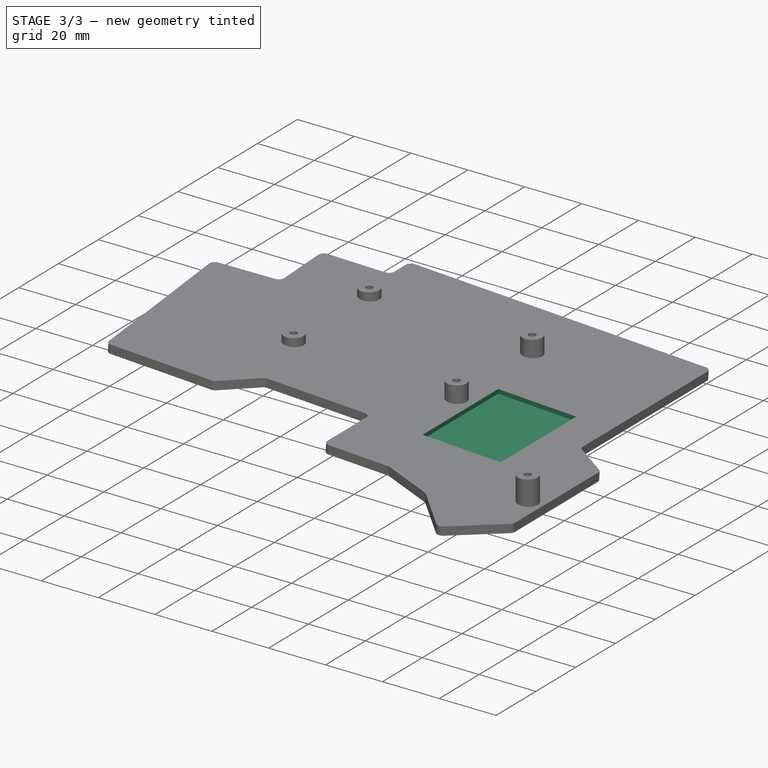
[diagram: stage 3 of 3 — iso view after this stage's code; geometry added in this stage tinted green]
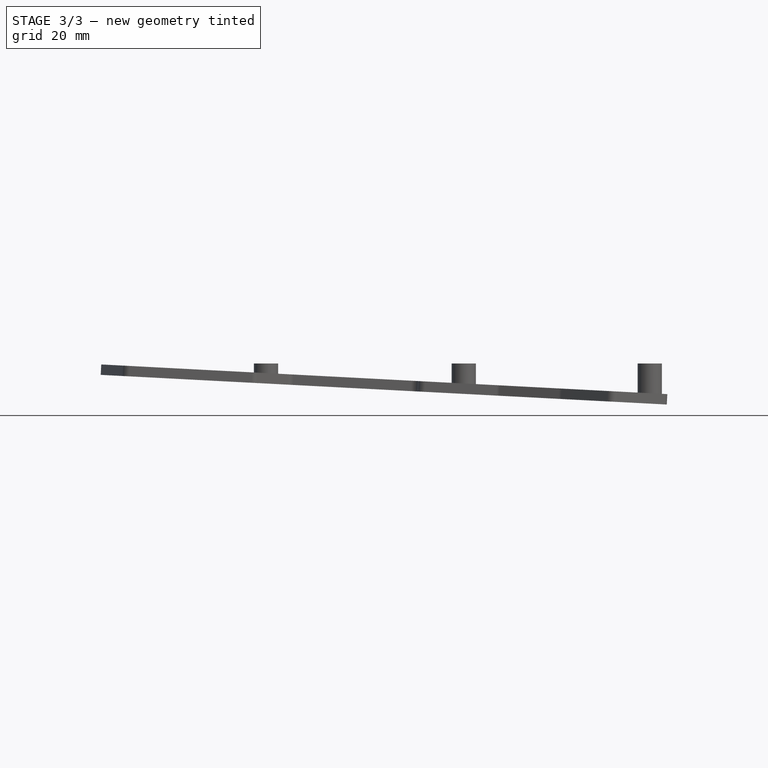
[diagram: stage 3 of 3 — front view after this stage's code; geometry added in this stage tinted green]
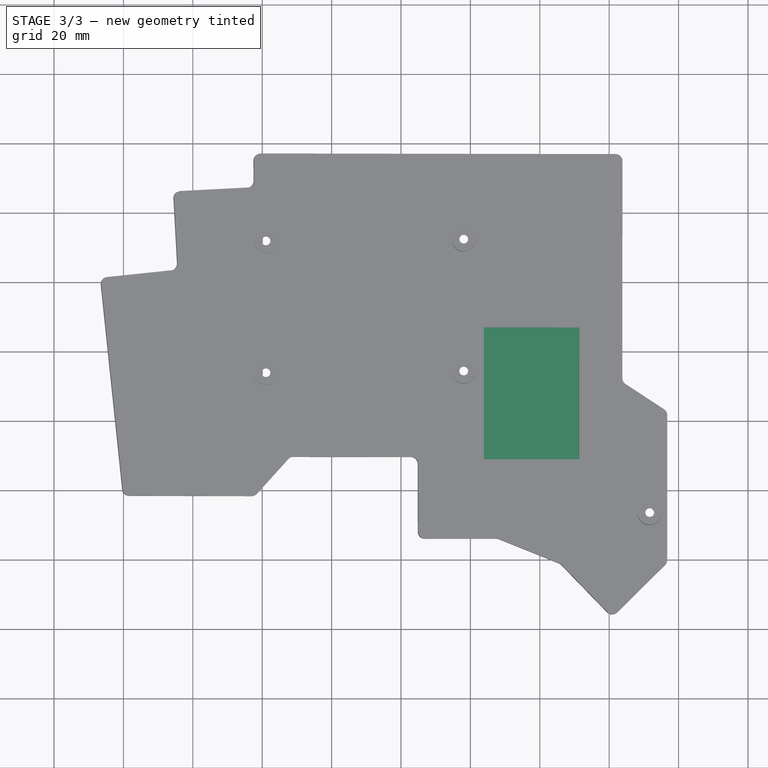
[diagram: stage 3 of 3 — top view after this stage's code; geometry added in this stage tinted green]
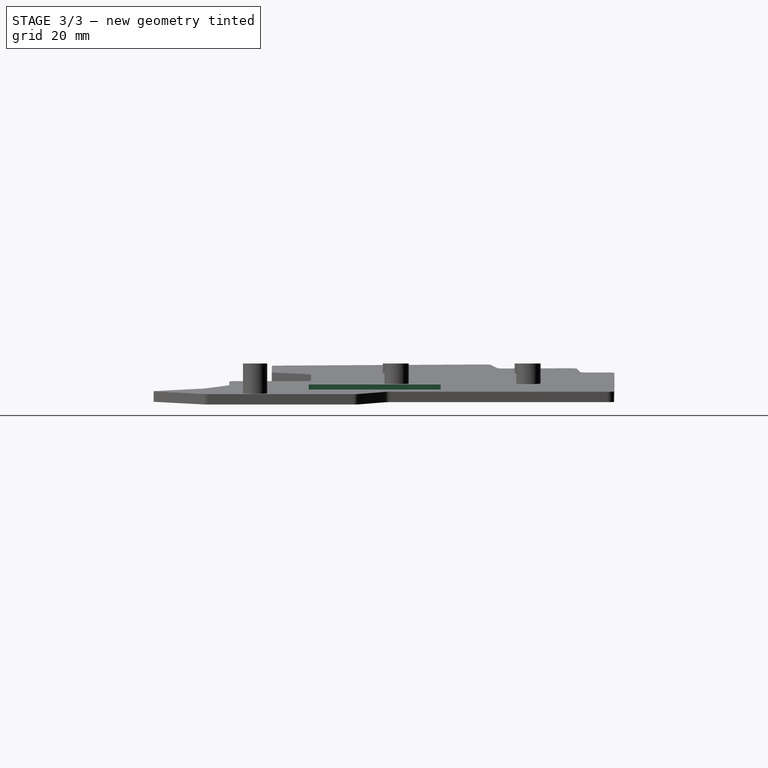
[diagram: stage 3 of 3 — right view after this stage's code; geometry added in this stage tinted green]
FEATURE [Measure::MeasureDistanceDetached] Distance_Free  label="Distance_Free: 14.58 mm"
  Distance = 14.5805
  DistanceX = 1.71794
  DistanceY = 14.2166
  DistanceZ = 2.74375
  Position1 = (-5.2245,48.138,-2.74375)
  Position2 = (-3.50655,33.9214,0)
FEATURE [App::DocumentObjectGroup] Measurements
  Group = -> [Distance_Free]
FEATURE [Sketcher::SketchObject] Sketch005
  ArcFitTolerance = 1e-06
  AttachmentSupport = -> [Pad002]
  ExternalGeometry = -> [Pad002]
  FullyConstrained = true
  MakeInternals = false
  MapMode = 5
  Placement = pos=(-0.189284,0,-6.01175) rot=(0.999657,0,-0.026177;3.14159rad)
  sketch-geometry (10):
    g0: LineSegment [constr] StartX=41.2797 StartY=-71.7618 StartZ=0 EndX=27.2797 EndY=-71.7618 EndZ=0
    g1: LineSegment [constr] StartX=98.3579 StartY=-72.2618 StartZ=0 EndX=123.358 EndY=-72.2618 EndZ=0
    g2: LineSegment [constr] StartX=41.2797 StartY=-33.7618 StartZ=0 EndX=27.2797 EndY=-19.7618 EndZ=0
    g3: LineSegment [constr] StartX=98.3579 StartY=-34.2619 StartZ=0 EndX=123.358 EndY=-9.26186 EndZ=0
    g4: LineSegment [constr] StartX=27.2797 StartY=-71.7618 StartZ=0 EndX=27.2797 EndY=-19.7618 EndZ=0
    g5: LineSegment [constr] StartX=123.358 StartY=-72.2618 StartZ=0 EndX=123.358 EndY=-9.26186 EndZ=0
    g6: Circle CenterX=27.2797 CenterY=-19.7618 CenterZ=0 NormalX=0 NormalY=0 NormalZ=1 AngleXU=0 Radius=8
    g7: Circle CenterX=27.2797 CenterY=-71.7618 CenterZ=0 NormalX=0 NormalY=0 NormalZ=1 AngleXU=0 Radius=8
    g8: Circle CenterX=123.358 CenterY=-72.2618 CenterZ=0 NormalX=0 NormalY=0 NormalZ=1 AngleXU=0 Radius=8
    g9: Circle CenterX=123.358 CenterY=-9.26186 CenterZ=0 NormalX=0 NormalY=0 NormalZ=1 AngleXU=0 Radius=8
  constraints (24):
    c: Distance(g0) = 14
    c: Coincident(g0,g-5)
    c: Horizontal(g0)
    c: Distance(g1) = 25
    c: Coincident(g1,g-6)
    c: Horizontal(g1)
    c: Angle(g-1,g2) = 2.35619
    c: Coincident(g2,g-4)
    c: Angle(g-1,g3) = 0.785398
    c: Coincident(g3,g-3)
    c: Coincident(g4,g0)
    c: Coincident(g4,g2)
    c: Vertical(g4)
    c: Coincident(g5,g1)
    c: Coincident(g5,g3)
    c: Vertical(g5)
    c: Diameter(g6) = 16
    c: Coincident(g6,g2)
    c: Diameter(g7) = 16
    c: Coincident(g7,g0)
    c: Diameter(g8) = 16
    c: Coincident(g8,g1)
    c: Diameter(g9) = 16
    c: Coincident(g9,g3)
FEATURE [PartDesign::Pocket] Pocket001
  BaseFeature = -> Pad002
  Direction = (0.052336,0,0.99863)
  Length = 0.25
  Length2 = 5
  Placement = pos=(0,0,-2.4) rot=(1,0,0;3.14159rad)
  Profile = -> Sketch005
  ReferenceAxis = -> Sketch005 [N_Axis]
  Suppressed = false
  Type = 0
FEATURE [Sketcher::SketchObject] Sketch006
  ArcFitTolerance = 1e-06
  AttachmentSupport = -> [Pocket001]
  ExternalGeometry = -> [Pocket001]
  FullyConstrained = true
  MakeInternals = false
  MapMode = 5
  Placement = pos=(-0.0322761,0,-3.01586) rot=(0,1,0;0.05236rad)
  sketch-geometry (6):
    g0: LineSegment [constr] StartX=131.538 StartY=96.9385 StartZ=0 EndX=131.538 EndY=46.9385 EndZ=0
    g1: LineSegment [constr] StartX=144.038 StartY=46.9385 StartZ=0 EndX=131.538 EndY=46.9385 EndZ=0
    g2: LineSegment StartX=131.538 StartY=46.9385 StartZ=0 EndX=104.038 EndY=46.9385 EndZ=0
    g3: LineSegment StartX=104.038 StartY=46.9385 StartZ=0 EndX=104.038 EndY=8.93852 EndZ=0
    g4: LineSegment StartX=104.038 StartY=8.93852 StartZ=0 EndX=131.538 EndY=8.93852 EndZ=0
    g5: LineSegment StartX=131.538 StartY=8.93852 StartZ=0 EndX=131.538 EndY=46.9385 EndZ=0
  constraints (18):
    c: Distance(g0) = 50
    c: Vertical(g0)
    c: PointOnObject(g0,g-4)
    c: Distance(g1) = 12.5
    c: Horizontal(g1)
    c: PointOnObject(g1,g-3)
    c: Coincident(g0,g1)
    c: Coincident(g2,g3)
    c: Coincident(g3,g4)
    c: Coincident(g4,g5)
    c: Coincident(g5,g2)
    c: Horizontal(g2)
    c: Horizontal(g4)
    c: Vertical(g3)
    c: Vertical(g5)
    c: Distance(g3,g5) = 27.5
    c: Distance(g2,g4) = 38
    c: Coincident(g2,g0)
FEATURE [PartDesign::Pocket] Pocket002
  BaseFeature = -> Pocket001
  Direction = (-0.052336,0,-0.99863)
  Length = 1.5
  Length2 = 5
  Placement = pos=(0,0,-2.4) rot=(1,0,0;3.14159rad)
  Profile = -> Sketch006
  ReferenceAxis = -> Sketch006 [N_Axis]
  Suppressed = false
  Type = 0
FEATURE [PartDesign::Body] Body  label="Bottom"
  AllowCompound = true
  Group = -> [Binder,DatumPlane,Sketch,Pad,Sketch001,Pad001,Sketch002,DatumPlane001,Sketch003,Pocket,Sketch004,Pad002,Sketch005,Pocket001,Sketch006,Pocket002]
  Origin = -> Origin
  Tip = -> Pocket002
FEATURE [Part::Refine] Body001  label="Bottom001"
  Source = -> Body
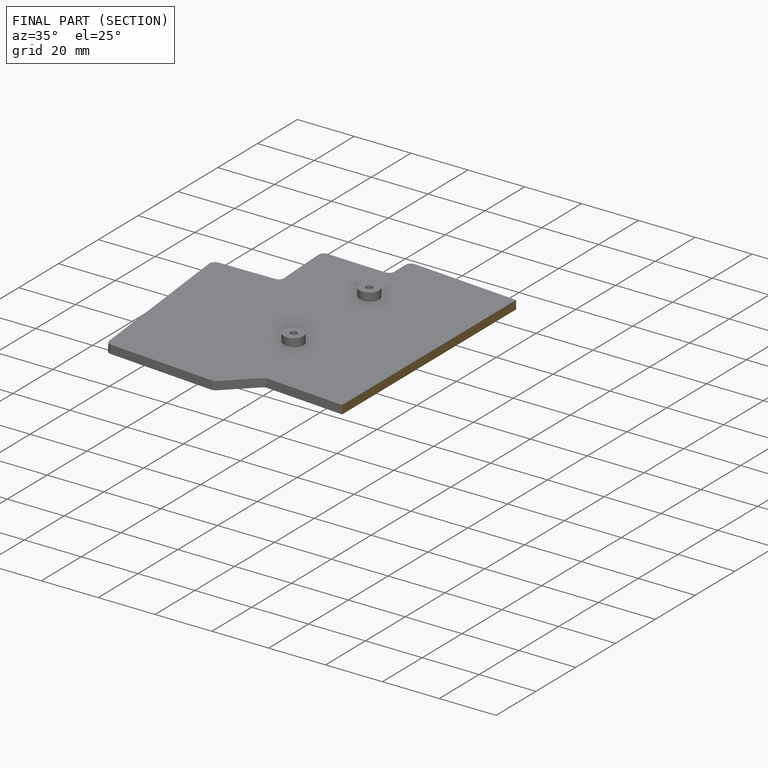
[diagram: finished part — half-section view (interior)]
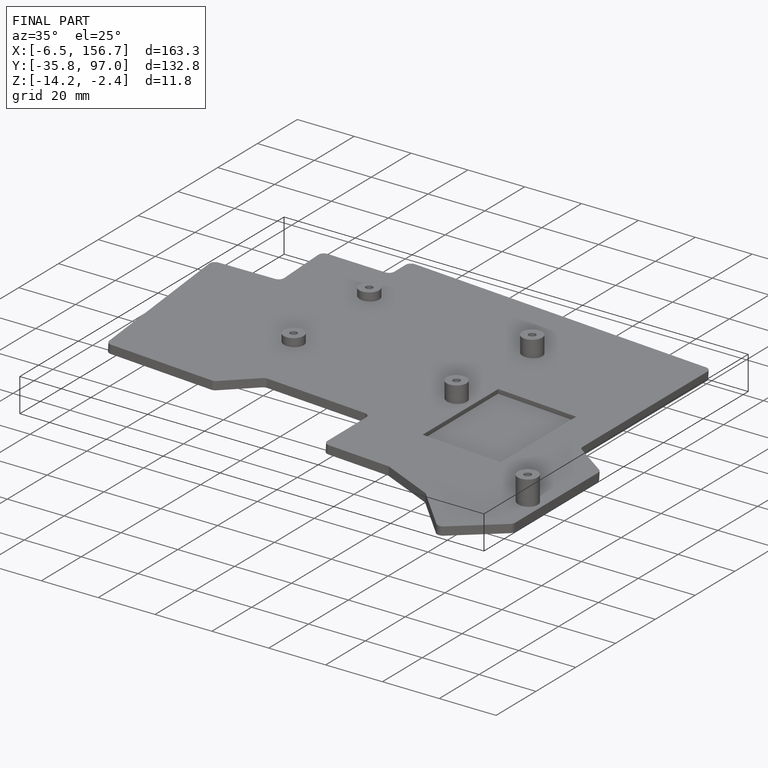
[diagram: finished part — iso view with bounding-box wireframe]
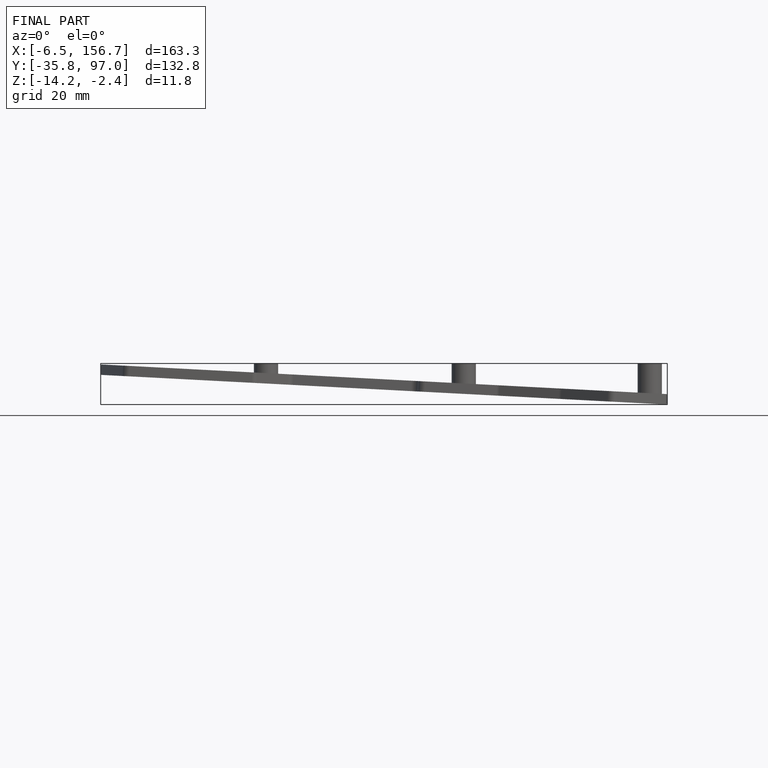
[diagram: finished part — front view with bounding-box wireframe]
